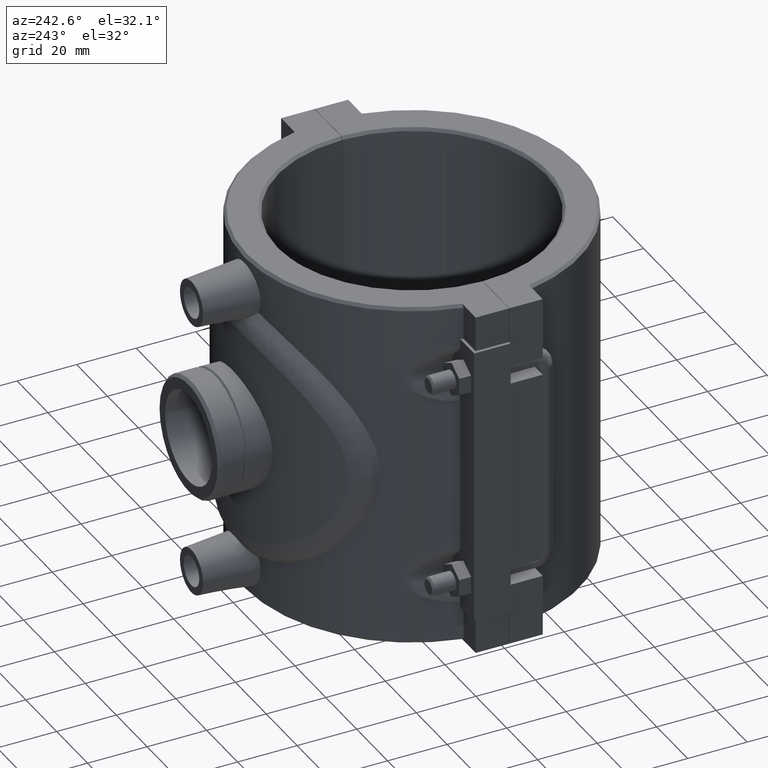
[diagram: clean part render]
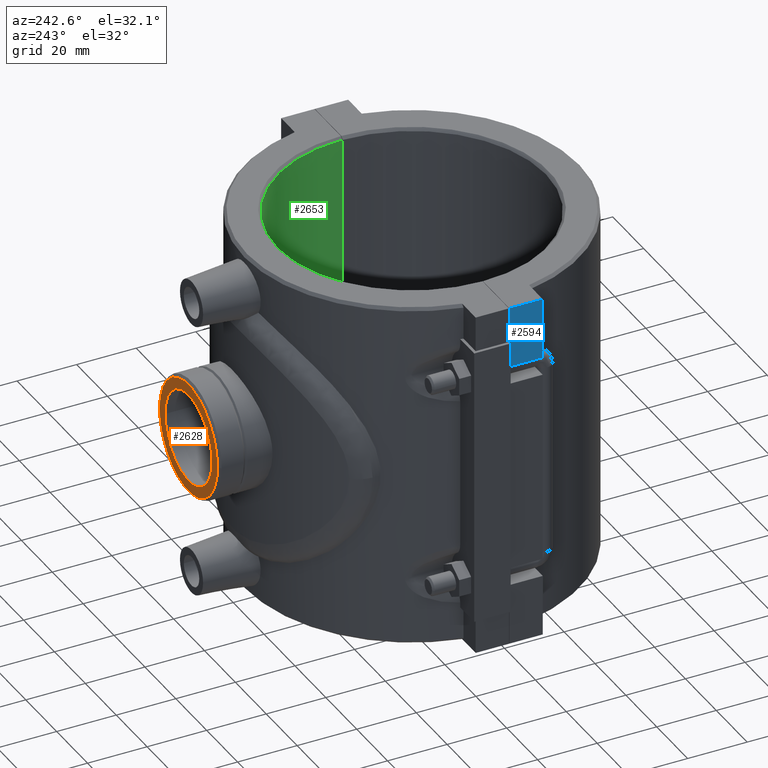
[diagram: same view with three faces highlighted in distinct colors, each labeled with its STEP entity id]
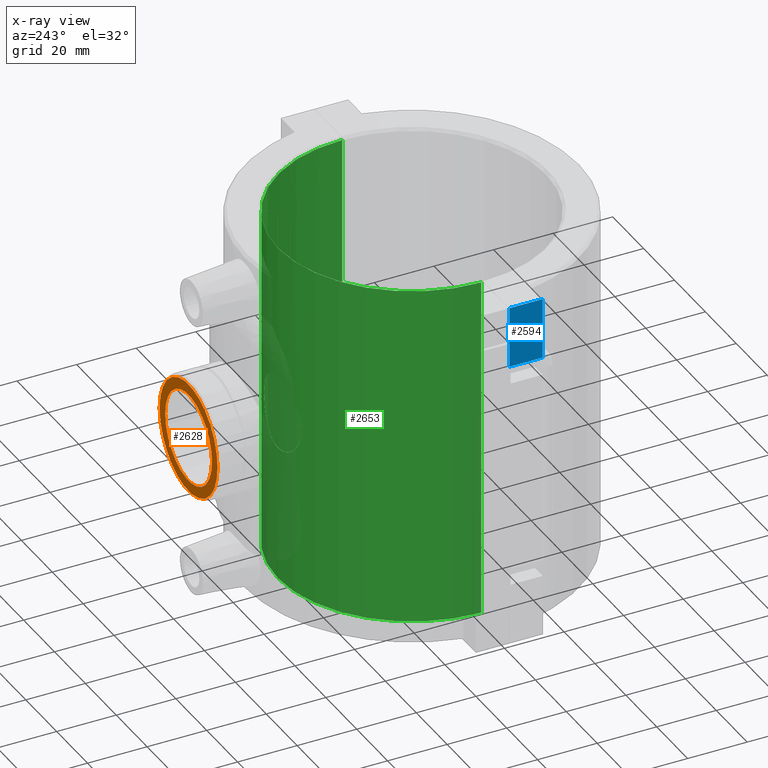
[diagram: x-ray of the same camera — body ghosted, the three highlighted faces saturated]
A machine part, auxiliary view with three faces highlighted in distinct colors.
The next image is the same camera in x-ray (body ghosted, the three faces saturated) — at least one of them is partly hidden behind the body in this view.
Their STEP definitions:

[orange] entity #2628 — the highlighted planar face has unit normal (0, 1, 0).
#135=FACE_BOUND('',#520,.T.);
#329=FACE_OUTER_BOUND('',#519,.T.);
#519=EDGE_LOOP('',(#2267));
#520=EDGE_LOOP('',(#2268));
#1044=CIRCLE('',#2842,18.78042);
#1047=CIRCLE('',#2847,15.1455);
#1292=VERTEX_POINT('',#5473);
#1295=VERTEX_POINT('',#5481);
#1640=EDGE_CURVE('',#1292,#1292,#1044,.T.);
#1643=EDGE_CURVE('',#1295,#1295,#1047,.T.);
#2267=ORIENTED_EDGE('',*,*,#1640,.F.);
#2268=ORIENTED_EDGE('',*,*,#1643,.T.);
#2493=PLANE('',#2846);
#2628=ADVANCED_FACE('',(#329,#135),#2493,.T.);
#2842=AXIS2_PLACEMENT_3D('',#5474,#3423,#3424);
#2846=AXIS2_PLACEMENT_3D('',#5480,#3431,#3432);
#2847=AXIS2_PLACEMENT_3D('',#5482,#3433,#3434);
#3423=DIRECTION('center_axis',(0.,-1.,0.));
#3424=DIRECTION('ref_axis',(1.,0.,0.));
#3431=DIRECTION('center_axis',(0.,1.,0.));
#3432=DIRECTION('ref_axis',(0.,0.,1.));
#3433=DIRECTION('center_axis',(0.,-1.,0.));
#3434=DIRECTION('ref_axis',(-1.,0.,0.));
#5473=CARTESIAN_POINT('',(-18.78042,75.,-2.29993812396429E-15));
#5474=CARTESIAN_POINT('Origin',(0.,75.,0.));
#5480=CARTESIAN_POINT('Origin',(9.52769518402124E-16,75.,3.75917032011762E-16));
#5481=CARTESIAN_POINT('',(15.1455,75.,-1.85478880964862E-15));
#5482=CARTESIAN_POINT('Origin',(0.,75.,0.));

[blue] entity #2594 — the highlighted planar face has unit normal (-1, 0, 0).
#295=FACE_OUTER_BOUND('',#479,.T.);
#479=EDGE_LOOP('',(#2096,#2097,#2098,#2099));
#710=LINE('',#5058,#909);
#717=LINE('',#5080,#916);
#722=LINE('',#5098,#921);
#723=LINE('',#5099,#922);
#909=VECTOR('',#3269,11.2);
#916=VECTOR('',#3282,20.6);
#921=VECTOR('',#3289,20.6);
#922=VECTOR('',#3290,11.2);
#1235=VERTEX_POINT('',#5054);
#1236=VERTEX_POINT('',#5056);
#1242=VERTEX_POINT('',#5079);
#1248=VERTEX_POINT('',#5097);
#1549=EDGE_CURVE('',#1235,#1236,#710,.T.);
#1558=EDGE_CURVE('',#1242,#1235,#717,.T.);
#1565=EDGE_CURVE('',#1236,#1248,#722,.T.);
#1566=EDGE_CURVE('',#1242,#1248,#723,.T.);
#2096=ORIENTED_EDGE('',*,*,#1549,.T.);
#2097=ORIENTED_EDGE('',*,*,#1565,.T.);
#2098=ORIENTED_EDGE('',*,*,#1566,.F.);
#2099=ORIENTED_EDGE('',*,*,#1558,.T.);
#2475=PLANE('',#2792);
#2594=ADVANCED_FACE('',(#295),#2475,.T.);
#2792=AXIS2_PLACEMENT_3D('',#5096,#3287,#3288);
#3269=DIRECTION('',(0.,-1.,0.));
#3282=DIRECTION('',(0.,0.,-1.));
#3287=DIRECTION('center_axis',(-1.,0.,0.));
#3288=DIRECTION('ref_axis',(0.,-1.,0.));
#3289=DIRECTION('',(0.,0.,1.));
#3290=DIRECTION('',(0.,-1.,0.));
#5054=CARTESIAN_POINT('',(-63.,-0.0499999999999989,38.4));
#5056=CARTESIAN_POINT('',(-63.,-11.25,38.4));
#5058=CARTESIAN_POINT('',(-63.,1.11022302462516E-14,38.4));
#5079=CARTESIAN_POINT('',(-63.,-0.05,59.));
#5080=CARTESIAN_POINT('',(-63.,-0.0499999999999989,-29.5));
#5096=CARTESIAN_POINT('Origin',(-63.,11.25,0.));
#5097=CARTESIAN_POINT('',(-63.,-11.25,59.));
#5098=CARTESIAN_POINT('',(-63.,-11.25,0.));
#5099=CARTESIAN_POINT('',(-63.,11.25,59.));

[green] entity #2653 — the highlighted cylindrical surface (partial cylindrical patch) has radius 45 mm, axis along (0, 0, 1).
#101=CYLINDRICAL_SURFACE('',#2887,45.);
#150=FACE_BOUND('',#560,.T.);
#211=B_SPLINE_CURVE_WITH_KNOTS('',3,(#5562,#5563,#5564,#5565,#5566,#5567,
#5568,#5569,#5570,#5571,#5572,#5573,#5574,#5575,#5576,#5577,#5578,#5579,
#5580,#5581,#5582,#5583,#5584,#5585,#5586,#5587,#5588,#5589,#5590,#5591,
#5592,#5593,#5594,#5595),.UNSPECIFIED.,.T.,.F.,(4,2,2,2,2,2,2,2,2,2,2,2,
2,2,2,2,4),(0.,0.458903283665581,0.917806567331163,1.37662266921961,1.83543877110806,
2.29425487299651,2.75307097488495,3.21197425855054,3.67087754221612,4.1297808258817,
4.58868410954728,5.04750021143573,5.50631631332417,5.96513241521262,6.42394851710107,
6.88285180076665,7.34175508443223),.UNSPECIFIED.);
#354=FACE_OUTER_BOUND('',#559,.T.);
#559=EDGE_LOOP('',(#2339,#2340,#2341,#2342));
#560=EDGE_LOOP('',(#2343));
#714=LINE('',#5071,#913);
#736=LINE('',#5375,#935);
#913=VECTOR('',#3277,116.2);
#935=VECTOR('',#3351,116.2);
#1029=CIRCLE('',#2813,45.);
#1039=CIRCLE('',#2832,45.);
#1239=VERTEX_POINT('',#5066);
#1240=VERTEX_POINT('',#5070);
#1262=VERTEX_POINT('',#5363);
#1264=VERTEX_POINT('',#5374);
#1300=VERTEX_POINT('',#5561);
#1554=EDGE_CURVE('',#1240,#1239,#714,.T.);
#1594=EDGE_CURVE('',#1240,#1262,#1029,.T.);
#1597=EDGE_CURVE('',#1264,#1262,#736,.T.);
#1618=EDGE_CURVE('',#1264,#1239,#1039,.T.);
#1648=EDGE_CURVE('',#1300,#1300,#211,.T.);
#2339=ORIENTED_EDGE('',*,*,#1594,.F.);
#2340=ORIENTED_EDGE('',*,*,#1554,.T.);
#2341=ORIENTED_EDGE('',*,*,#1618,.F.);
#2342=ORIENTED_EDGE('',*,*,#1597,.T.);
#2343=ORIENTED_EDGE('',*,*,#1648,.T.);
#2653=ADVANCED_FACE('',(#354,#150),#101,.F.);
#2813=AXIS2_PLACEMENT_3D('',#5369,#3342,#3343);
#2832=AXIS2_PLACEMENT_3D('',#5430,#3387,#3388);
#2887=AXIS2_PLACEMENT_3D('',#5731,#3519,#3520);
#3277=DIRECTION('',(0.,0.,-1.));
#3342=DIRECTION('center_axis',(0.,0.,-1.));
#3343=DIRECTION('ref_axis',(-1.,0.,0.));
#3351=DIRECTION('',(0.,0.,1.));
#3387=DIRECTION('center_axis',(0.,0.,1.));
#3388=DIRECTION('ref_axis',(-1.,0.,0.));
#3519=DIRECTION('center_axis',(0.,0.,1.));
#3520=DIRECTION('ref_axis',(-1.,0.,0.));
#5066=CARTESIAN_POINT('',(-44.9999722222136,0.05,-58.1));
#5070=CARTESIAN_POINT('',(-44.9999722222136,0.05,58.1));
#5071=CARTESIAN_POINT('',(-44.9999722222136,0.05,0.));
#5363=CARTESIAN_POINT('',(44.9999722222136,0.05,58.1));
#5369=CARTESIAN_POINT('Origin',(0.,0.,58.1));
#5374=CARTESIAN_POINT('',(44.9999722222136,0.05,-58.1));
#5375=CARTESIAN_POINT('',(44.9999722222136,0.05,0.));
#5430=CARTESIAN_POINT('Origin',(0.,0.,-58.1));
#5561=CARTESIAN_POINT('',(12.1164,43.3381223755714,-2.77555756156289E-16));
#5562=CARTESIAN_POINT('Ctrl Pts',(12.1164,43.3381223755714,-2.77555756156289E-16));
#5563=CARTESIAN_POINT('Ctrl Pts',(12.1164,43.3381223755714,-1.52967761221861));
#5564=CARTESIAN_POINT('Ctrl Pts',(11.8091417633178,43.4275616504393,-3.15582467720771));
#5565=CARTESIAN_POINT('Ctrl Pts',(10.5703548215662,43.7455886460096,-6.13862143039807));
#5566=CARTESIAN_POINT('Ctrl Pts',(9.6392045279423,43.9690492161981,-7.49597267919507));
#5567=CARTESIAN_POINT('Ctrl Pts',(7.49617626322687,44.3846644872147,-9.6390009439105));
#5568=CARTESIAN_POINT('Ctrl Pts',(6.13874096833066,44.6045351854395,-10.5703095926297));
#5569=CARTESIAN_POINT('Ctrl Pts',(3.15564352558084,44.9142584663928,-11.8092125809855));
#5570=CARTESIAN_POINT('Ctrl Pts',(1.52938700629483,45.,-12.1164));
#5571=CARTESIAN_POINT('Ctrl Pts',(-1.52938700629483,45.,-12.1164));
#5572=CARTESIAN_POINT('Ctrl Pts',(-3.15564352558084,44.9142584663928,-11.8092125809855));
#5573=CARTESIAN_POINT('Ctrl Pts',(-6.13874096833066,44.6045351854395,-10.5703095926297));
#5574=CARTESIAN_POINT('Ctrl Pts',(-7.49617626322687,44.3846644872147,-9.6390009439105));
#5575=CARTESIAN_POINT('Ctrl Pts',(-9.6392045279423,43.9690492161981,-7.49597267919507));
#5576=CARTESIAN_POINT('Ctrl Pts',(-10.5703548215663,43.7455886460096,-6.13862143039807));
#5577=CARTESIAN_POINT('Ctrl Pts',(-11.8091417633178,43.4275616504393,-3.15582467720771));
#5578=CARTESIAN_POINT('Ctrl Pts',(-12.1164,43.3381223755714,-1.5296776122186));
#5579=CARTESIAN_POINT('Ctrl Pts',(-12.1164,43.3381223755714,1.5296776122186));
#5580=CARTESIAN_POINT('Ctrl Pts',(-11.8091417633178,43.4275616504393,3.1558246772077));
#5581=CARTESIAN_POINT('Ctrl Pts',(-10.5703548215663,43.7455886460096,6.13862143039806));
#5582=CARTESIAN_POINT('Ctrl Pts',(-9.6392045279423,43.9690492161981,7.49597267919507));
#5583=CARTESIAN_POINT('Ctrl Pts',(-7.49617626322687,44.3846644872147,9.6390009439105));
#5584=CARTESIAN_POINT('Ctrl Pts',(-6.13874096833066,44.6045351854395,10.5703095926297));
#5585=CARTESIAN_POINT('Ctrl Pts',(-3.15564352558084,44.9142584663928,11.8092125809855));
#5586=CARTESIAN_POINT('Ctrl Pts',(-1.52938700629483,45.,12.1164));
#5587=CARTESIAN_POINT('Ctrl Pts',(1.52938700629482,45.,12.1164));
#5588=CARTESIAN_POINT('Ctrl Pts',(3.15564352558084,44.9142584663928,11.8092125809855));
#5589=CARTESIAN_POINT('Ctrl Pts',(6.13874096833066,44.6045351854395,10.5703095926298));
#5590=CARTESIAN_POINT('Ctrl Pts',(7.49617626322686,44.3846644872147,9.6390009439105));
#5591=CARTESIAN_POINT('Ctrl Pts',(9.6392045279423,43.9690492161981,7.49597267919508));
#5592=CARTESIAN_POINT('Ctrl Pts',(10.5703548215662,43.7455886460096,6.13862143039807));
#5593=CARTESIAN_POINT('Ctrl Pts',(11.8091417633178,43.4275616504393,3.15582467720771));
#5594=CARTESIAN_POINT('Ctrl Pts',(12.1164,43.3381223755714,1.52967761221861));
#5595=CARTESIAN_POINT('Ctrl Pts',(12.1164,43.3381223755714,0.));
#5731=CARTESIAN_POINT('Origin',(0.,0.,0.));